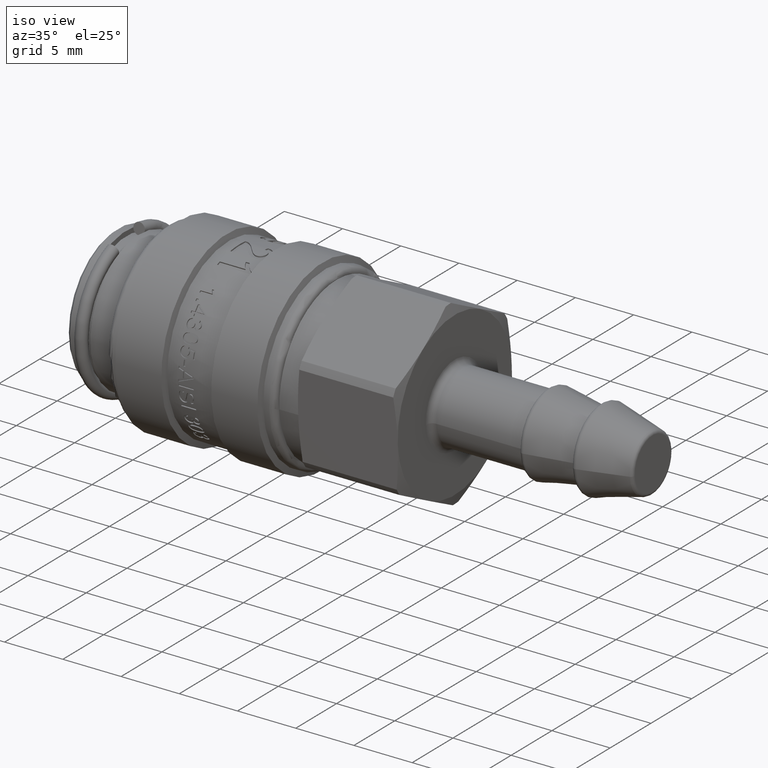
[diagram: clean part render]
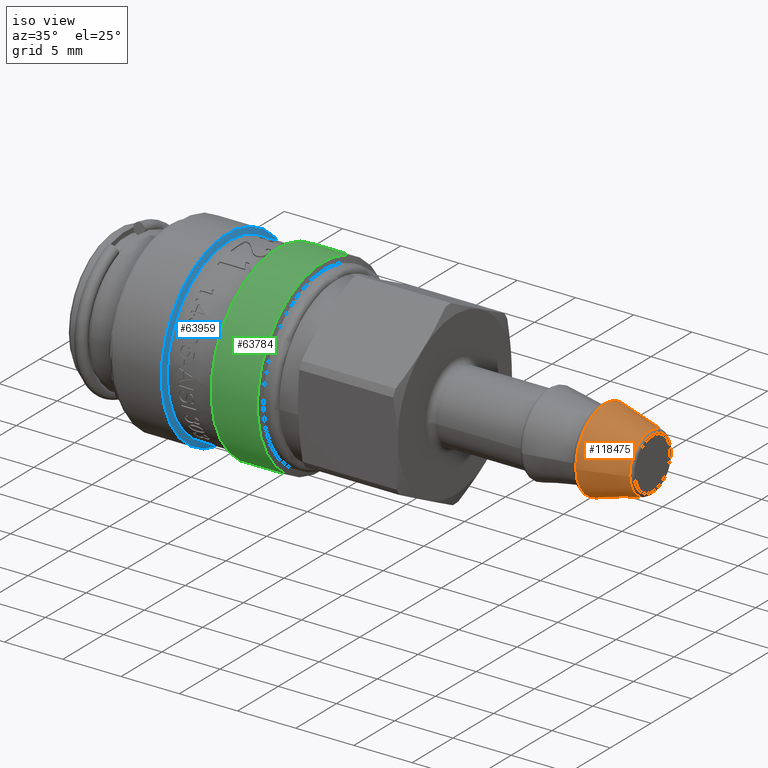
[diagram: same view with three faces highlighted in distinct colors, each labeled with its STEP entity id]
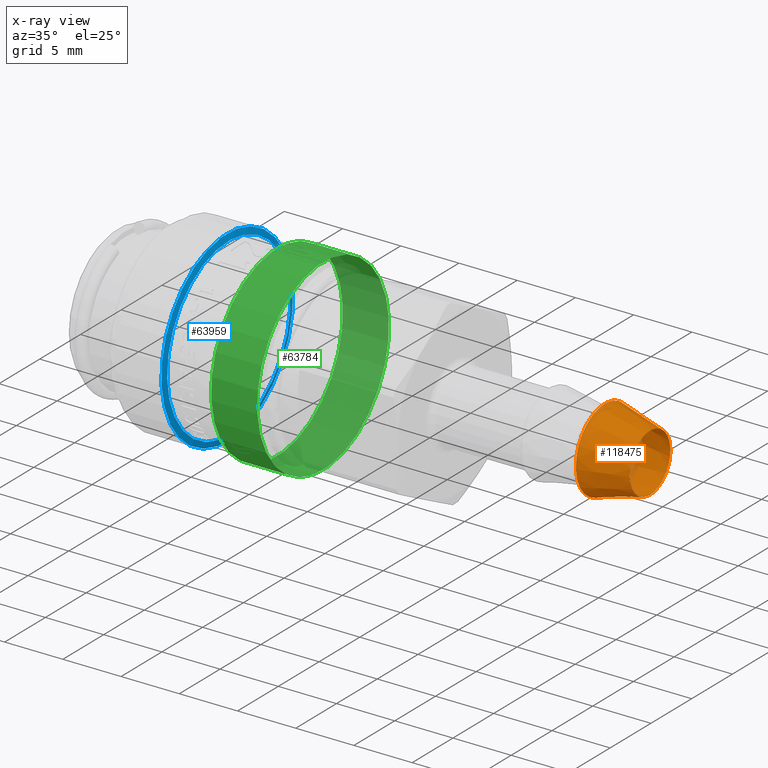
[diagram: x-ray of the same camera — body ghosted, the three highlighted faces saturated]
A machine part, iso view with three faces highlighted in distinct colors.
The next image is the same camera in x-ray (body ghosted, the three faces saturated) — at least one of them is partly hidden behind the body in this view.
Their STEP definitions:

[orange] entity #118475 — the highlighted conical surface has half-angle 15 deg.
#117594=CARTESIAN_POINT('',(42.02764571353076,-3.534049302550458,-0.201300848424949));
#117595=VERTEX_POINT('',#117594);
#117596=CARTESIAN_POINT('',(42.02764571353076,0.0,0.0));
#117597=DIRECTION('',(-1.0,0.0,0.0));
#117598=DIRECTION('',(0.0,-0.99838169350048,-0.056868216809693));
#117599=AXIS2_PLACEMENT_3D('',#117596,#117597,#117598);
#117600=CIRCLE('',#117599,3.53977774788672);
#117601=EDGE_CURVE('',#117595,#117595,#117600,.T.);
#118456=CARTESIAN_POINT('',(44.088822856765375,0.0,0.0));
#118457=DIRECTION('',(-1.0,0.0,0.0));
#118458=DIRECTION('',(0.0,-0.99838169350048,-0.056868216809693));
#118459=AXIS2_PLACEMENT_3D('',#118456,#118457,#118458);
#118460=CONICAL_SURFACE('',#118459,2.987486996899516,15.000000000000005);
#118461=ORIENTED_EDGE('',*,*,#117601,.F.);
#118462=EDGE_LOOP('',(#118461));
#118463=FACE_OUTER_BOUND('',#118462,.T.);
#118464=CARTESIAN_POINT('',(45.927645713530758,-2.490738585355724,-0.141873456625244));
#118465=VERTEX_POINT('',#118464);
#118466=CARTESIAN_POINT('',(45.927645713530758,1.737449E-017,-3.050275E-016));
#118467=DIRECTION('',(1.0,0.0,0.0));
#118468=DIRECTION('',(0.0,0.99838169350048,0.056868216809693));
#118469=AXIS2_PLACEMENT_3D('',#118466,#118467,#118468);
#118470=CIRCLE('',#118469,2.494775897405342);
#118471=EDGE_CURVE('',#118465,#118465,#118470,.T.);
#118472=ORIENTED_EDGE('',*,*,#118471,.F.);
#118473=EDGE_LOOP('',(#118472));
#118474=FACE_BOUND('',#118473,.T.);
#118475=ADVANCED_FACE('',(#118463,#118474),#118460,.T.);

[blue] entity #63959 — the highlighted conical surface has half-angle 75 deg.
#63932=CARTESIAN_POINT('',(9.669663336986831,0.0,0.0));
#63933=DIRECTION('',(-1.0,0.0,0.0));
#63934=DIRECTION('',(0.0,-0.14116917663789,-0.989985486543808));
#63935=AXIS2_PLACEMENT_3D('',#63932,#63933,#63934);
#63936=CONICAL_SURFACE('',#63935,7.8125,74.999999999999886);
#63937=CARTESIAN_POINT('',(9.74,-1.065827283616066,-7.474390423405751));
#63938=VERTEX_POINT('',#63937);
#63939=CARTESIAN_POINT('',(9.74,0.0,0.0));
#63940=DIRECTION('',(1.0,0.0,0.0));
#63941=DIRECTION('',(0.0,-0.141169176637889,-0.989985486543808));
#63942=AXIS2_PLACEMENT_3D('',#63939,#63940,#63941);
#63943=CIRCLE('',#63942,7.55);
#63944=EDGE_CURVE('',#63938,#63938,#63943,.T.);
#63945=ORIENTED_EDGE('',*,*,#63944,.F.);
#63946=EDGE_LOOP('',(#63945));
#63947=FACE_OUTER_BOUND('',#63946,.T.);
#63948=CARTESIAN_POINT('',(9.599326673973661,-1.139941101350958,-7.99413280384125));
#63949=VERTEX_POINT('',#63948);
#63950=CARTESIAN_POINT('',(9.599326673973661,0.0,0.0));
#63951=DIRECTION('',(1.0,0.0,0.0));
#63952=DIRECTION('',(0.0,-0.14116917663789,-0.989985486543808));
#63953=AXIS2_PLACEMENT_3D('',#63950,#63951,#63952);
#63954=CIRCLE('',#63953,8.074999999999999);
#63955=EDGE_CURVE('',#63949,#63949,#63954,.T.);
#63956=ORIENTED_EDGE('',*,*,#63955,.T.);
#63957=EDGE_LOOP('',(#63956));
#63958=FACE_BOUND('',#63957,.T.);
#63959=ADVANCED_FACE('',(#63947,#63958),#63936,.T.);

[green] entity #63784 — the highlighted cylindrical surface (bore or boss wall) has radius 8.075 mm, axis along (1, 0, 0).
#63753=CARTESIAN_POINT('',(17.849326673973664,-1.139941101350958,-7.994132803841251));
#63754=VERTEX_POINT('',#63753);
#63755=CARTESIAN_POINT('',(17.849326673973664,0.0,0.0));
#63756=DIRECTION('',(1.0,0.0,0.0));
#63757=DIRECTION('',(0.0,-0.141169176637889,-0.989985486543808));
#63758=AXIS2_PLACEMENT_3D('',#63755,#63756,#63757);
#63759=CIRCLE('',#63758,8.074999999999999);
#63760=EDGE_CURVE('',#63754,#63754,#63759,.T.);
#63765=CARTESIAN_POINT('',(15.865000000000002,0.0,0.0));
#63766=DIRECTION('',(1.0,0.0,0.0));
#63767=DIRECTION('',(0.0,-0.14116917663789,-0.989985486543808));
#63768=AXIS2_PLACEMENT_3D('',#63765,#63766,#63767);
#63769=CYLINDRICAL_SURFACE('',#63768,8.074999999999999);
#63770=ORIENTED_EDGE('',*,*,#63760,.F.);
#63771=EDGE_LOOP('',(#63770));
#63772=FACE_OUTER_BOUND('',#63771,.T.);
#63773=CARTESIAN_POINT('',(13.88067332602634,-1.139941101350958,-7.99413280384125));
#63774=VERTEX_POINT('',#63773);
#63775=CARTESIAN_POINT('',(13.88067332602634,0.0,0.0));
#63776=DIRECTION('',(1.0,0.0,0.0));
#63777=DIRECTION('',(0.0,-0.14116917663789,-0.989985486543808));
#63778=AXIS2_PLACEMENT_3D('',#63775,#63776,#63777);
#63779=CIRCLE('',#63778,8.074999999999999);
#63780=EDGE_CURVE('',#63774,#63774,#63779,.T.);
#63781=ORIENTED_EDGE('',*,*,#63780,.T.);
#63782=EDGE_LOOP('',(#63781));
#63783=FACE_BOUND('',#63782,.T.);
#63784=ADVANCED_FACE('',(#63772,#63783),#63769,.T.);